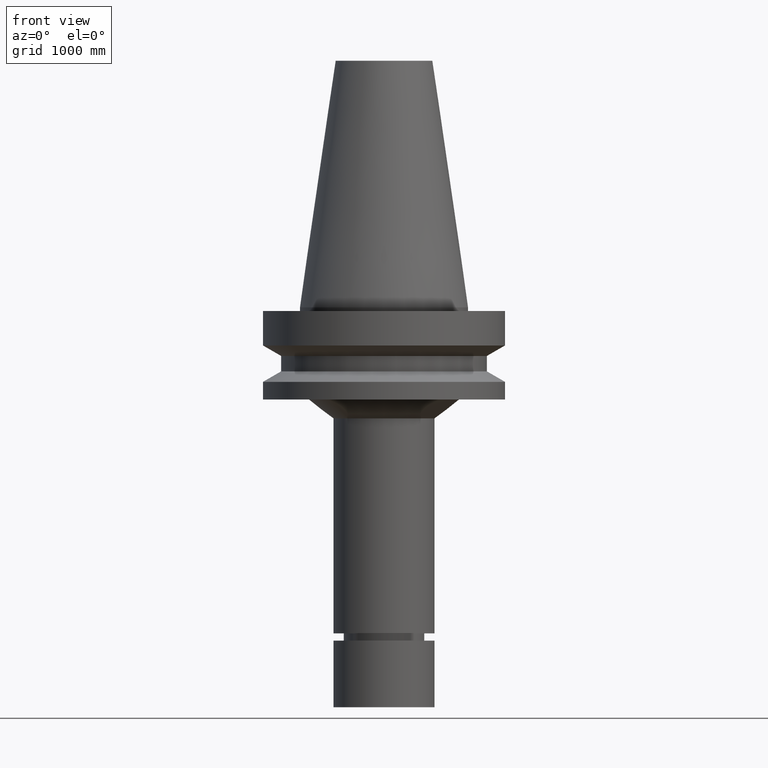
[diagram: clean part render]
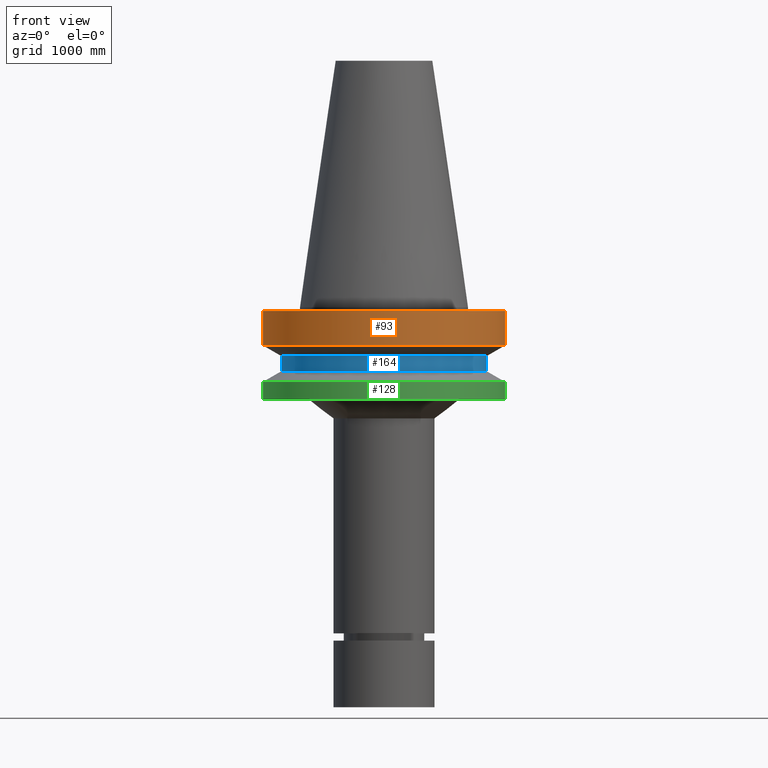
[diagram: same view with three faces highlighted in distinct colors, each labeled with its STEP entity id]
A machine part, front view with three faces highlighted in distinct colors.
Their STEP definitions:

[orange] entity #93 — the highlighted cylindrical surface (bore or boss wall) has radius 1270 mm, axis along (-0, -0, 1).
#80=EDGE_CURVE('Unnamed[1]',#209,#209,#210,.T.);
#93=ADVANCED_FACE('Unnamed[1]',(#227,#228),#229,.T.);
#106=EDGE_CURVE('Unnamed[1]',#248,#248,#249,.T.);
#209=VERTEX_POINT('',#387);
#210=CIRCLE('',#388,50.0);
#227=FACE_BOUND('',#409,.T.);
#228=FACE_BOUND('',#410,.T.);
#229=CYLINDRICAL_SURFACE('',#411,50.0);
#248=VERTEX_POINT('',#435);
#249=CIRCLE('',#436,50.0);
#387=CARTESIAN_POINT('',(9.61347737330674E-016,50.0,-15.7));
#388=AXIS2_PLACEMENT_3D('',#589,#590,#591);
#409=EDGE_LOOP('',(#606));
#410=EDGE_LOOP('',(#607));
#411=AXIS2_PLACEMENT_3D('',#608,#609,#610);
#435=CARTESIAN_POINT('',(9.18485099360509E-017,50.0,-1.49999999999999));
#436=AXIS2_PLACEMENT_3D('',#631,#632,#633);
#589=CARTESIAN_POINT('',(9.61347737330675E-016,1.62369811889471E-014,-15.7));
#590=DIRECTION('',(-6.12323399573677E-017,-2.72265846766671E-017,1.0));
#591=DIRECTION('',(-6.49430021956856E-033,1.0,2.72265846766671E-017));
#606=ORIENTED_EDGE('',*,*,#106,.F.);
#607=ORIENTED_EDGE('',*,*,#80,.T.);
#608=CARTESIAN_POINT('',(5.26598123633363E-016,1.60436724377429E-014,-8.60000000000002));
#609=DIRECTION('',(-6.12323399573677E-017,-2.72265846766671E-017,1.0));
#610=DIRECTION('',(-6.49430021956856E-033,1.0,2.72265846766671E-017));
#631=CARTESIAN_POINT('',(9.18485099360515E-017,1.58503636865388E-014,-1.5));
#632=DIRECTION('',(-6.12323399573677E-017,-2.72265846766671E-017,1.0));
#633=DIRECTION('',(-6.49430021956856E-033,1.0,2.72265846766671E-017));

[blue] entity #164 — the highlighted cylindrical surface (bore or boss wall) has radius 1079.5 mm, axis along (-0, -0, 1).
#140=EDGE_CURVE('Unnamed[1]',#300,#300,#301,.T.);
#164=ADVANCED_FACE('Unnamed[1]',(#337,#338),#339,.T.);
#180=EDGE_CURVE('Unnamed[1]',#362,#362,#363,.T.);
#300=VERTEX_POINT('',#499);
#301=CIRCLE('',#500,42.5);
#337=FACE_BOUND('',#545,.T.);
#338=FACE_BOUND('',#546,.T.);
#339=CYLINDRICAL_SURFACE('',#547,42.5);
#362=VERTEX_POINT('',#577);
#363=CIRCLE('',#578,42.5);
#499=CARTESIAN_POINT('',(1.61468902694397E-015,42.5,-26.3698729800001));
#500=AXIS2_PLACEMENT_3D('',#688,#689,#690);
#545=EDGE_LOOP('',(#730));
#546=EDGE_LOOP('',(#731));
#547=AXIS2_PLACEMENT_3D('',#732,#733,#734);
#577=CARTESIAN_POINT('',(1.2264915470779E-015,42.5,-20.03012702));
#578=AXIS2_PLACEMENT_3D('',#758,#759,#760);
#688=CARTESIAN_POINT('',(1.61468902694397E-015,1.6527485389126E-014,-26.3698729800001));
#689=DIRECTION('',(-6.12323399573677E-017,-2.72265846766253E-017,1.0));
#690=DIRECTION('',(-6.4943002195635E-033,1.0,2.72265846766253E-017));
#730=ORIENTED_EDGE('',*,*,#180,.F.);
#731=ORIENTED_EDGE('',*,*,#140,.T.);
#732=CARTESIAN_POINT('',(1.42059028701093E-015,1.64411805740219E-014,-23.2));
#733=DIRECTION('',(-6.12323399573677E-017,-2.72265846766253E-017,1.0));
#734=DIRECTION('',(-6.4943002195635E-033,1.0,2.72265846766253E-017));
#758=CARTESIAN_POINT('',(1.2264915470779E-015,1.63548757589177E-014,-20.03012702));
#759=DIRECTION('',(-6.12323399573677E-017,-2.72265846766253E-017,1.0));
#760=DIRECTION('',(-6.4943002195635E-033,1.0,2.72265846766253E-017));

[green] entity #128 — the highlighted cylindrical surface (bore or boss wall) has radius 1270 mm, axis along (-0, -0, 1).
#78=EDGE_CURVE('Unnamed[1]',#206,#206,#207,.T.);
#128=ADVANCED_FACE('Unnamed[1]',(#280,#281),#282,.T.);
#168=EDGE_CURVE('Unnamed[1]',#344,#344,#345,.T.);
#206=VERTEX_POINT('',#383);
#207=CIRCLE('',#384,50.0);
#280=FACE_BOUND('',#474,.T.);
#281=FACE_BOUND('',#475,.T.);
#282=CYLINDRICAL_SURFACE('',#476,50.0);
#344=VERTEX_POINT('',#554);
#345=CIRCLE('',#555,50.0);
#383=CARTESIAN_POINT('',(1.87983283669119E-015,50.0,-30.7000000000001));
#384=AXIS2_PLACEMENT_3D('',#586,#587,#588);
#474=EDGE_LOOP('',(#665));
#475=EDGE_LOOP('',(#666));
#476=AXIS2_PLACEMENT_3D('',#667,#668,#669);
#554=CARTESIAN_POINT('',(2.32682891837996E-015,50.0,-37.9999999999998));
#555=AXIS2_PLACEMENT_3D('',#738,#739,#740);
#586=CARTESIAN_POINT('',(1.87983283669119E-015,1.66453799590967E-014,-30.7));
#587=DIRECTION('',(-6.12323399573677E-017,-2.72265846766671E-017,1.0));
#588=DIRECTION('',(-6.49430021956856E-033,1.0,2.72265846766671E-017));
#665=ORIENTED_EDGE('',*,*,#78,.F.);
#666=ORIENTED_EDGE('',*,*,#168,.T.);
#667=CARTESIAN_POINT('',(2.10333087753557E-015,1.67447569931664E-014,-34.3499999999999));
#668=DIRECTION('',(-6.12323399573677E-017,-2.72265846766671E-017,1.0));
#669=DIRECTION('',(-6.49430021956856E-033,1.0,2.72265846766671E-017));
#738=CARTESIAN_POINT('',(2.32682891837996E-015,1.68441340272361E-014,-37.9999999999998));
#739=DIRECTION('',(-6.12323399573677E-017,-2.72265846766671E-017,1.0));
#740=DIRECTION('',(-6.49430021956856E-033,1.0,2.72265846766671E-017));